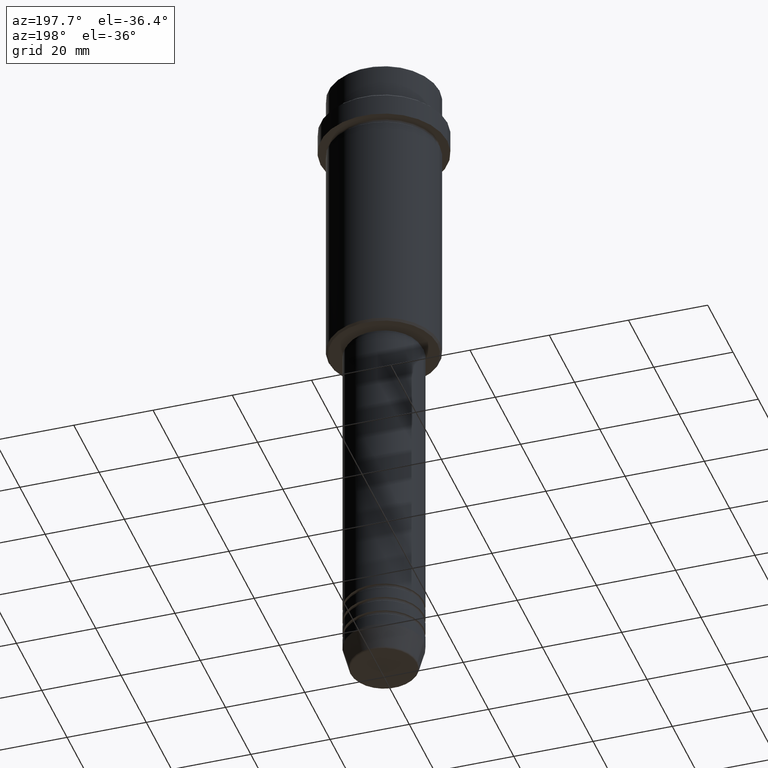
[diagram: clean part render]
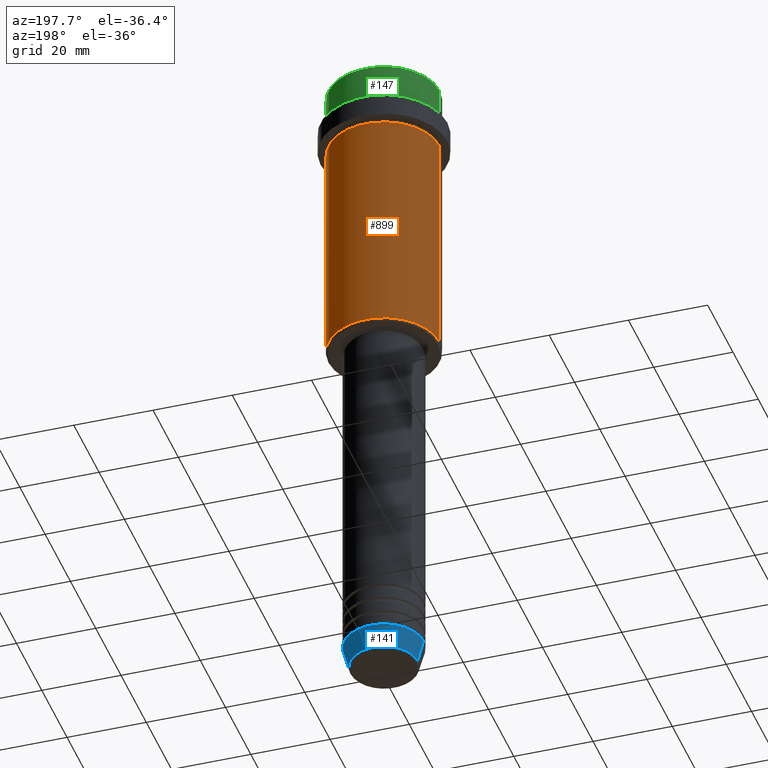
[diagram: same view with three faces highlighted in distinct colors, each labeled with its STEP entity id]
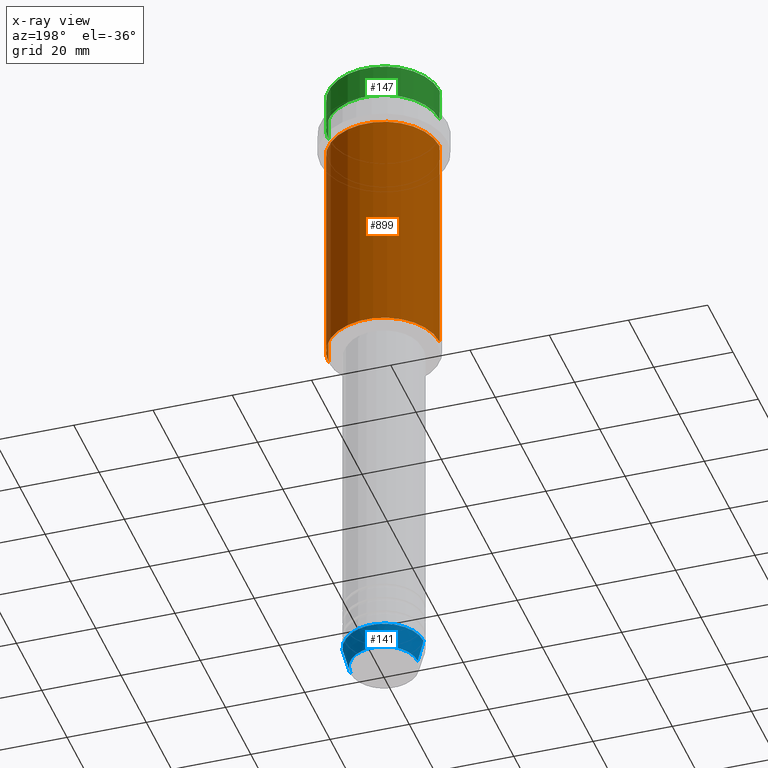
[diagram: x-ray of the same camera — body ghosted, the three highlighted faces saturated]
A machine part, auxiliary view with three faces highlighted in distinct colors.
The next image is the same camera in x-ray (body ghosted, the three faces saturated) — at least one of them is partly hidden behind the body in this view.
Their STEP definitions:

[orange] entity #899 — the highlighted cylindrical surface (partial cylindrical patch) has radius 14 mm, axis along (-0, -0, 1).
#2 = ORIENTED_EDGE ( 'NONE', *, *, #639, .F. ) ;
#16 = DIRECTION ( 'NONE',  ( -0.000000000000000000, -0.000000000000000000, 1.000000000000000000 ) ) ;
#20 = DIRECTION ( 'NONE',  ( -1.000000000000000000, 0.000000000000000000, 0.000000000000000000 ) ) ;
#22 = CARTESIAN_POINT ( 'NONE',  ( 0.000000000000000000, 0.000000000000000000, 0.000000000000000000 ) ) ;
#23 = ORIENTED_EDGE ( 'NONE', *, *, #685, .F. ) ;
#50 = CARTESIAN_POINT ( 'NONE',  ( 13.99999999999998934, 0.000000000000000000, -75.50000000000001421 ) ) ;
#209 = CARTESIAN_POINT ( 'NONE',  ( 0.000000000000000000, 0.000000000000000000, -75.50000000000001421 ) ) ;
#227 = DIRECTION ( 'NONE',  ( -0.000000000000000000, -0.000000000000000000, 1.000000000000000000 ) ) ;
#242 = CYLINDRICAL_SURFACE ( 'NONE', #649, 13.99999999999998934 ) ;
#285 = CARTESIAN_POINT ( 'NONE',  ( -13.99999999999998934, 1.714505518806293257E-15, -75.50000000000001421 ) ) ;
#327 = VERTEX_POINT ( 'NONE', #993 ) ;
#406 = DIRECTION ( 'NONE',  ( -0.000000000000000000, -0.000000000000000000, 1.000000000000000000 ) ) ;
#427 = DIRECTION ( 'NONE',  ( 1.000000000000000000, 0.000000000000000000, 0.000000000000000000 ) ) ;
#432 = CARTESIAN_POINT ( 'NONE',  ( -13.99999999999997868, 1.714505518806292666E-15, -17.00000000000000355 ) ) ;
#457 = CARTESIAN_POINT ( 'NONE',  ( 0.000000000000000000, 0.000000000000000000, -17.00000000000000355 ) ) ;
#540 = DIRECTION ( 'NONE',  ( -0.000000000000000000, -0.000000000000000000, 1.000000000000000000 ) ) ;
#568 = LINE ( 'NONE', #1311, #579 ) ;
#579 = VECTOR ( 'NONE', #1003, 1000.000000000000000 ) ;
#631 = CIRCLE ( 'NONE', #723, 13.99999999999998934 ) ;
#639 = EDGE_CURVE ( 'NONE', #327, #933, #1034, .T. ) ;
#649 = AXIS2_PLACEMENT_3D ( 'NONE', #22, #540, #427 ) ;
#685 = EDGE_CURVE ( 'NONE', #1074, #327, #568, .T. ) ;
#723 = AXIS2_PLACEMENT_3D ( 'NONE', #209, #227, #20 ) ;
#738 = LINE ( 'NONE', #1164, #1288 ) ;
#889 = ORIENTED_EDGE ( 'NONE', *, *, #1324, .T. ) ;
#899 = ADVANCED_FACE ( 'NONE', ( #1326 ), #242, .T. ) ;
#905 = DIRECTION ( 'NONE',  ( 1.000000000000000000, 0.000000000000000000, 0.000000000000000000 ) ) ;
#933 = VERTEX_POINT ( 'NONE', #432 ) ;
#962 = AXIS2_PLACEMENT_3D ( 'NONE', #457, #16, #905 ) ;
#993 = CARTESIAN_POINT ( 'NONE',  ( 13.99999999999997868, 0.000000000000000000, -17.00000000000000355 ) ) ;
#1003 = DIRECTION ( 'NONE',  ( -0.000000000000000000, -0.000000000000000000, 1.000000000000000000 ) ) ;
#1034 = CIRCLE ( 'NONE', #962, 13.99999999999997868 ) ;
#1074 = VERTEX_POINT ( 'NONE', #50 ) ;
#1164 = CARTESIAN_POINT ( 'NONE',  ( -13.99999999999998934, 1.714505518806293257E-15, 0.000000000000000000 ) ) ;
#1169 = EDGE_CURVE ( 'NONE', #1182, #933, #738, .T. ) ;
#1182 = VERTEX_POINT ( 'NONE', #285 ) ;
#1195 = EDGE_LOOP ( 'NONE', ( #889, #1255, #2, #23 ) ) ;
#1255 = ORIENTED_EDGE ( 'NONE', *, *, #1169, .T. ) ;
#1288 = VECTOR ( 'NONE', #406, 1000.000000000000000 ) ;
#1311 = CARTESIAN_POINT ( 'NONE',  ( 13.99999999999998934, 0.000000000000000000, 0.000000000000000000 ) ) ;
#1324 = EDGE_CURVE ( 'NONE', #1074, #1182, #631, .T. ) ;
#1326 = FACE_OUTER_BOUND ( 'NONE', #1195, .T. ) ;

[blue] entity #141 — the highlighted conical surface has half-angle 15 deg.
#24 = CARTESIAN_POINT ( 'NONE',  ( 8.491604264568309191, 0.000000000000000000, -169.6294095225512990 ) ) ;
#58 = DIRECTION ( 'NONE',  ( 1.000000000000000000, 0.000000000000000000, 0.000000000000000000 ) ) ;
#68 = CIRCLE ( 'NONE', #295, 8.491604264568309191 ) ;
#113 = EDGE_CURVE ( 'NONE', #646, #1111, #68, .T. ) ;
#141 = ADVANCED_FACE ( 'NONE', ( #477 ), #1133, .T. ) ;
#149 = DIRECTION ( 'NONE',  ( 1.000000000000000000, 0.000000000000000000, 0.000000000000000000 ) ) ;
#183 = VERTEX_POINT ( 'NONE', #573 ) ;
#185 = ORIENTED_EDGE ( 'NONE', *, *, #113, .T. ) ;
#265 = CARTESIAN_POINT ( 'NONE',  ( 0.000000000000000000, 0.000000000000000000, -169.6294095225512990 ) ) ;
#284 = ORIENTED_EDGE ( 'NONE', *, *, #657, .T. ) ;
#295 = AXIS2_PLACEMENT_3D ( 'NONE', #265, #811, #149 ) ;
#300 = ORIENTED_EDGE ( 'NONE', *, *, #748, .F. ) ;
#367 = CARTESIAN_POINT ( 'NONE',  ( -8.491604264568309191, 1.132284198685156387E-15, -169.6294095225512990 ) ) ;
#370 = CARTESIAN_POINT ( 'NONE',  ( -10.00000000000000000, 1.224646799147353256E-15, -164.0000000000000000 ) ) ;
#444 = AXIS2_PLACEMENT_3D ( 'NONE', #926, #819, #729 ) ;
#474 = AXIS2_PLACEMENT_3D ( 'NONE', #1343, #489, #58 ) ;
#477 = FACE_OUTER_BOUND ( 'NONE', #948, .T. ) ;
#486 = ORIENTED_EDGE ( 'NONE', *, *, #860, .F. ) ;
#489 = DIRECTION ( 'NONE',  ( -0.000000000000000000, -0.000000000000000000, 1.000000000000000000 ) ) ;
#573 = CARTESIAN_POINT ( 'NONE',  ( 10.00000000000000000, 0.000000000000000000, -164.0000000000000000 ) ) ;
#627 = VECTOR ( 'NONE', #668, 1000.000000000000114 ) ;
#646 = VERTEX_POINT ( 'NONE', #24 ) ;
#657 = EDGE_CURVE ( 'NONE', #1111, #725, #684, .T. ) ;
#668 = DIRECTION ( 'NONE',  ( -0.2588190451025211281, 3.169619151431769872E-17, 0.9659258262890680902 ) ) ;
#684 = LINE ( 'NONE', #370, #627 ) ;
#725 = VERTEX_POINT ( 'NONE', #825 ) ;
#729 = DIRECTION ( 'NONE',  ( 1.000000000000000000, 0.000000000000000000, 0.000000000000000000 ) ) ;
#748 = EDGE_CURVE ( 'NONE', #183, #725, #896, .T. ) ;
#811 = DIRECTION ( 'NONE',  ( -0.000000000000000000, -0.000000000000000000, 1.000000000000000000 ) ) ;
#819 = DIRECTION ( 'NONE',  ( -0.000000000000000000, -0.000000000000000000, 1.000000000000000000 ) ) ;
#825 = CARTESIAN_POINT ( 'NONE',  ( -10.00000000000000000, 1.224646799147353256E-15, -164.0000000000000000 ) ) ;
#860 = EDGE_CURVE ( 'NONE', #646, #183, #1206, .T. ) ;
#896 = CIRCLE ( 'NONE', #444, 10.00000000000000000 ) ;
#926 = CARTESIAN_POINT ( 'NONE',  ( 0.000000000000000000, 0.000000000000000000, -164.0000000000000000 ) ) ;
#948 = EDGE_LOOP ( 'NONE', ( #185, #284, #300, #486 ) ) ;
#1111 = VERTEX_POINT ( 'NONE', #367 ) ;
#1133 = CONICAL_SURFACE ( 'NONE', #474, 10.00000000000000000, 0.2617993877991498519 ) ;
#1206 = LINE ( 'NONE', #1305, #1287 ) ;
#1287 = VECTOR ( 'NONE', #1294, 1000.000000000000114 ) ;
#1294 = DIRECTION ( 'NONE',  ( 0.2588190451025211281, 0.000000000000000000, 0.9659258262890680902 ) ) ;
#1305 = CARTESIAN_POINT ( 'NONE',  ( 10.00000000000000000, 0.000000000000000000, -164.0000000000000000 ) ) ;
#1343 = CARTESIAN_POINT ( 'NONE',  ( 0.000000000000000000, 0.000000000000000000, -164.0000000000000000 ) ) ;

[green] entity #147 — the highlighted cylindrical surface (partial cylindrical patch) has radius 14 mm, axis along (-0, -0, 1).
#29 = VERTEX_POINT ( 'NONE', #483 ) ;
#36 = FACE_OUTER_BOUND ( 'NONE', #827, .T. ) ;
#124 = DIRECTION ( 'NONE',  ( 1.000000000000000000, 0.000000000000000000, 0.000000000000000000 ) ) ;
#147 = ADVANCED_FACE ( 'NONE', ( #36 ), #567, .T. ) ;
#178 = AXIS2_PLACEMENT_3D ( 'NONE', #1303, #548, #124 ) ;
#219 = LINE ( 'NONE', #766, #1035 ) ;
#279 = CARTESIAN_POINT ( 'NONE',  ( 0.000000000000000000, 0.000000000000000000, -0.4999999999999987232 ) ) ;
#286 = LINE ( 'NONE', #511, #1157 ) ;
#305 = DIRECTION ( 'NONE',  ( -0.000000000000000000, -0.000000000000000000, 1.000000000000000000 ) ) ;
#307 = EDGE_CURVE ( 'NONE', #419, #1275, #286, .T. ) ;
#419 = VERTEX_POINT ( 'NONE', #845 ) ;
#483 = CARTESIAN_POINT ( 'NONE',  ( 13.99999999999998934, 0.000000000000000000, -0.4999999999999987232 ) ) ;
#511 = CARTESIAN_POINT ( 'NONE',  ( -13.99999999999998934, 1.714505518806293257E-15, 0.000000000000000000 ) ) ;
#548 = DIRECTION ( 'NONE',  ( -0.000000000000000000, -0.000000000000000000, 1.000000000000000000 ) ) ;
#567 = CYLINDRICAL_SURFACE ( 'NONE', #971, 13.99999999999998934 ) ;
#683 = CARTESIAN_POINT ( 'NONE',  ( 0.000000000000000000, 0.000000000000000000, 0.000000000000000000 ) ) ;
#741 = AXIS2_PLACEMENT_3D ( 'NONE', #279, #1105, #1220 ) ;
#764 = CARTESIAN_POINT ( 'NONE',  ( -13.99999999999998934, 1.714505518806293257E-15, -0.4999999999999987232 ) ) ;
#766 = CARTESIAN_POINT ( 'NONE',  ( 13.99999999999998934, 0.000000000000000000, 0.000000000000000000 ) ) ;
#804 = DIRECTION ( 'NONE',  ( 1.000000000000000000, 0.000000000000000000, 0.000000000000000000 ) ) ;
#827 = EDGE_LOOP ( 'NONE', ( #1388, #1176, #1299, #1249 ) ) ;
#845 = CARTESIAN_POINT ( 'NONE',  ( -13.99999999999997868, 1.714505518806292666E-15, -8.999999999999998224 ) ) ;
#866 = EDGE_CURVE ( 'NONE', #918, #29, #219, .T. ) ;
#918 = VERTEX_POINT ( 'NONE', #1184 ) ;
#971 = AXIS2_PLACEMENT_3D ( 'NONE', #683, #1348, #804 ) ;
#1035 = VECTOR ( 'NONE', #1298, 1000.000000000000000 ) ;
#1049 = EDGE_CURVE ( 'NONE', #1275, #29, #1360, .T. ) ;
#1081 = CIRCLE ( 'NONE', #178, 13.99999999999997868 ) ;
#1105 = DIRECTION ( 'NONE',  ( 0.000000000000000000, 0.000000000000000000, -1.000000000000000000 ) ) ;
#1157 = VECTOR ( 'NONE', #305, 1000.000000000000000 ) ;
#1176 = ORIENTED_EDGE ( 'NONE', *, *, #307, .T. ) ;
#1184 = CARTESIAN_POINT ( 'NONE',  ( 13.99999999999997868, 0.000000000000000000, -8.999999999999998224 ) ) ;
#1220 = DIRECTION ( 'NONE',  ( 1.000000000000000000, 0.000000000000000000, 0.000000000000000000 ) ) ;
#1249 = ORIENTED_EDGE ( 'NONE', *, *, #866, .F. ) ;
#1275 = VERTEX_POINT ( 'NONE', #764 ) ;
#1279 = EDGE_CURVE ( 'NONE', #918, #419, #1081, .T. ) ;
#1298 = DIRECTION ( 'NONE',  ( -0.000000000000000000, -0.000000000000000000, 1.000000000000000000 ) ) ;
#1299 = ORIENTED_EDGE ( 'NONE', *, *, #1049, .T. ) ;
#1303 = CARTESIAN_POINT ( 'NONE',  ( 0.000000000000000000, 0.000000000000000000, -8.999999999999998224 ) ) ;
#1348 = DIRECTION ( 'NONE',  ( -0.000000000000000000, -0.000000000000000000, 1.000000000000000000 ) ) ;
#1360 = CIRCLE ( 'NONE', #741, 13.99999999999998934 ) ;
#1388 = ORIENTED_EDGE ( 'NONE', *, *, #1279, .T. ) ;